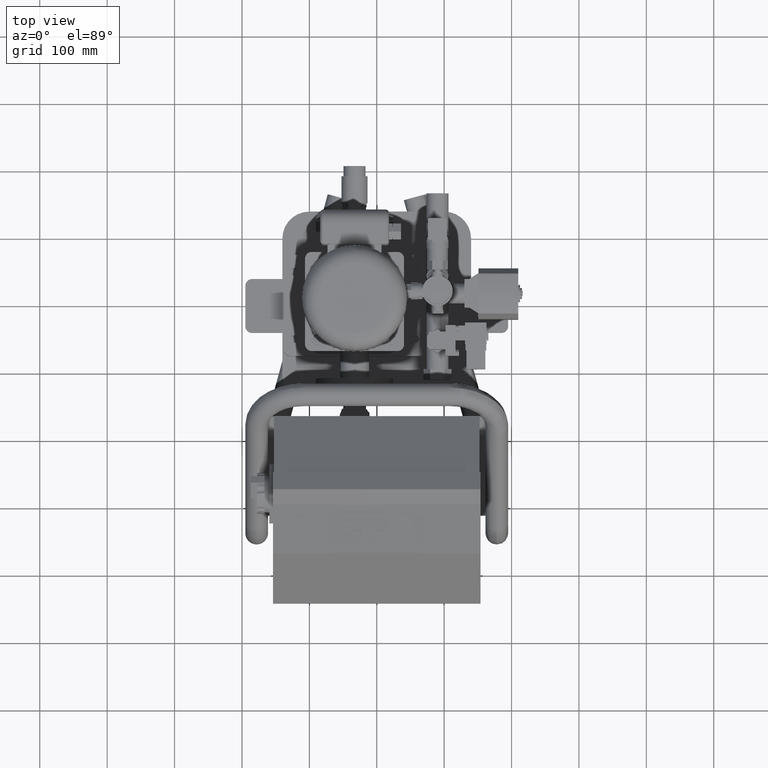
[diagram: clean part render]
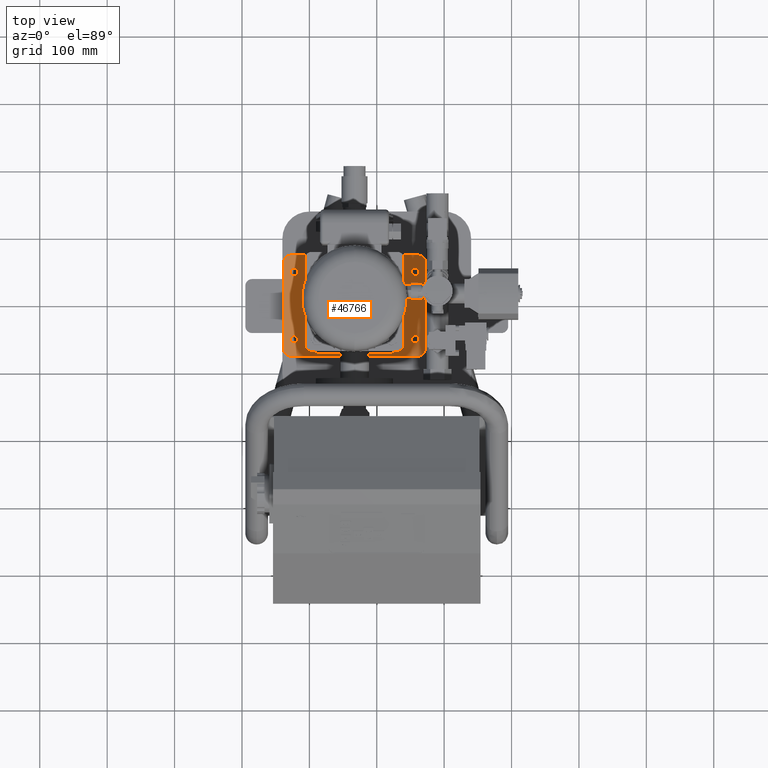
[diagram: same view with one face highlighted and labeled with its STEP entity id]
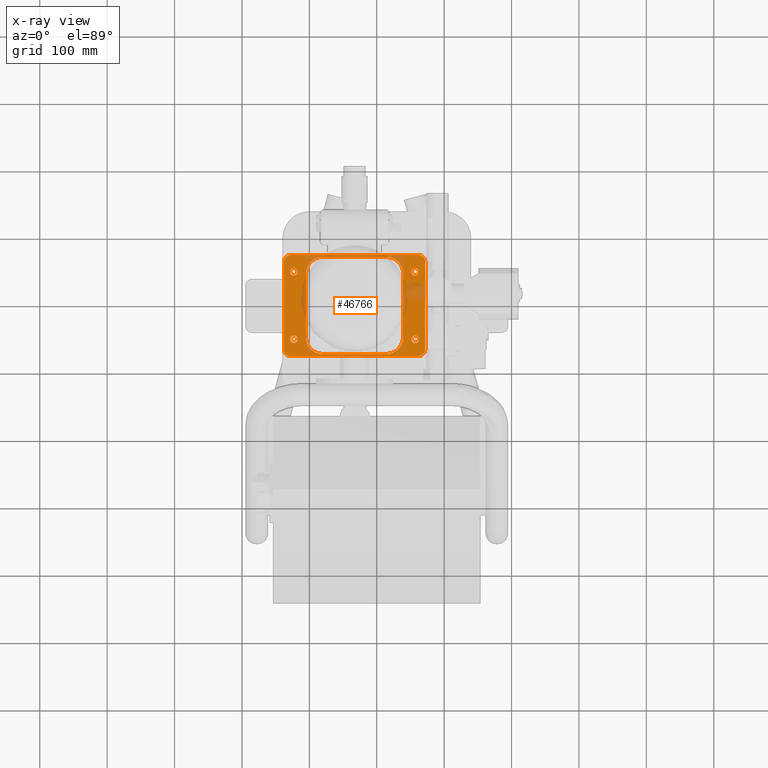
[diagram: x-ray of the same camera — body ghosted, the highlighted face saturated]
A machine part, top view. The second image highlights one B-rep face of the part: STEP entity #46766.
The next image is the same camera in x-ray: the body ghosted, the highlighted face saturated — about 20% of this face is hidden behind the body in this view.
In plain terms, the highlighted planar face has unit normal (0, 0, 1).
Its self-contained STEP definition (entity closure, byte-faithful):
#44602=CARTESIAN_POINT('',(-122.999999999999990,55.500000000000014,78.0));
#44603=VERTEX_POINT('',#44602);
#44619=CARTESIAN_POINT('',(-122.999999999999990,44.500000000000014,78.0));
#44620=VERTEX_POINT('',#44619);
#44627=CARTESIAN_POINT('',(-122.999999999999990,50.000000000000014,78.0));
#44628=DIRECTION('',(0.0,0.0,-1.0));
#44629=DIRECTION('',(0.0,1.0,0.0));
#44630=AXIS2_PLACEMENT_3D('',#44627,#44628,#44629);
#44631=CIRCLE('',#44630,5.500000000000000);
#44632=EDGE_CURVE('',#44603,#44620,#44631,.T.);
#44644=CARTESIAN_POINT('',(57.000000000000014,55.499999999999993,78.0));
#44645=VERTEX_POINT('',#44644);
#44661=CARTESIAN_POINT('',(57.000000000000014,44.500000000000000,78.0));
#44662=VERTEX_POINT('',#44661);
#44669=CARTESIAN_POINT('',(57.000000000000014,49.999999999999993,78.0));
#44670=DIRECTION('',(0.0,0.0,-1.0));
#44671=DIRECTION('',(0.0,1.0,0.0));
#44672=AXIS2_PLACEMENT_3D('',#44669,#44670,#44671);
#44673=CIRCLE('',#44672,5.500000000000000);
#44674=EDGE_CURVE('',#44645,#44662,#44673,.T.);
#44686=CARTESIAN_POINT('',(57.0,-44.500000000000007,78.0));
#44687=VERTEX_POINT('',#44686);
#44703=CARTESIAN_POINT('',(57.0,-55.500000000000000,78.0));
#44704=VERTEX_POINT('',#44703);
#44711=CARTESIAN_POINT('',(57.0,-50.000000000000007,78.0));
#44712=DIRECTION('',(0.0,0.0,-1.0));
#44713=DIRECTION('',(0.0,1.0,0.0));
#44714=AXIS2_PLACEMENT_3D('',#44711,#44712,#44713);
#44715=CIRCLE('',#44714,5.500000000000000);
#44716=EDGE_CURVE('',#44687,#44704,#44715,.T.);
#44728=CARTESIAN_POINT('',(-123.0,-44.499999999999986,78.0));
#44729=VERTEX_POINT('',#44728);
#44745=CARTESIAN_POINT('',(-123.0,-55.499999999999986,78.0));
#44746=VERTEX_POINT('',#44745);
#44753=CARTESIAN_POINT('',(-123.0,-49.999999999999986,78.0));
#44754=DIRECTION('',(0.0,0.0,-1.0));
#44755=DIRECTION('',(0.0,1.0,0.0));
#44756=AXIS2_PLACEMENT_3D('',#44753,#44754,#44755);
#44757=CIRCLE('',#44756,5.500000000000000);
#44758=EDGE_CURVE('',#44729,#44746,#44757,.T.);
#46147=CARTESIAN_POINT('',(-105.000000000000010,-47.374238321107356,78.0));
#46148=VERTEX_POINT('',#46147);
#46155=CARTESIAN_POINT('',(-80.374238321107427,-71.999999999999986,78.0));
#46156=VERTEX_POINT('',#46155);
#46157=CARTESIAN_POINT('',(-79.620074369691338,-46.620074369691288,78.0));
#46158=DIRECTION('',(0.0,0.0,-1.000000000000000));
#46159=DIRECTION('',(-0.707106781186547,-0.707106781186548,0.0));
#46160=AXIS2_PLACEMENT_3D('',#46157,#46158,#46159);
#46161=ELLIPSE('',#46160,25.754247222545644,25.000000000000004);
#46162=EDGE_CURVE('',#46148,#46156,#46161,.F.);
#46179=CARTESIAN_POINT('',(14.374238321107377,-72.0,78.0));
#46180=VERTEX_POINT('',#46179);
#46181=CARTESIAN_POINT('',(14.374238321107377,-72.0,78.0));
#46182=DIRECTION('',(-1.0,0.0,0.0));
#46183=VECTOR('',#46182,94.748476642214797);
#46184=LINE('',#46181,#46183);
#46185=EDGE_CURVE('',#46180,#46156,#46184,.T.);
#46205=CARTESIAN_POINT('',(39.0,-47.374238321107399,78.0));
#46206=VERTEX_POINT('',#46205);
#46207=CARTESIAN_POINT('',(13.620074369691302,-46.620074369691309,78.0));
#46208=DIRECTION('',(0.0,0.0,-1.0));
#46209=DIRECTION('',(0.707106781186548,-0.707106781186547,0.0));
#46210=AXIS2_PLACEMENT_3D('',#46207,#46208,#46209);
#46211=ELLIPSE('',#46210,25.754247222545640,25.0);
#46212=EDGE_CURVE('',#46180,#46206,#46211,.F.);
#46229=CARTESIAN_POINT('',(39.000000000000028,47.374238321107399,78.0));
#46230=VERTEX_POINT('',#46229);
#46237=CARTESIAN_POINT('',(14.374238321107427,72.0,78.0));
#46238=VERTEX_POINT('',#46237);
#46239=CARTESIAN_POINT('',(13.620074369691338,46.620074369691324,78.0));
#46240=DIRECTION('',(0.0,0.0,-1.0));
#46241=DIRECTION('',(0.707106781186547,0.707106781186548,0.0));
#46242=AXIS2_PLACEMENT_3D('',#46239,#46240,#46241);
#46243=ELLIPSE('',#46242,25.754247222545640,25.0);
#46244=EDGE_CURVE('',#46230,#46238,#46243,.F.);
#46261=CARTESIAN_POINT('',(-80.374238321107384,72.000000000000014,78.0));
#46262=VERTEX_POINT('',#46261);
#46263=CARTESIAN_POINT('',(-80.374238321107384,72.000000000000014,78.0));
#46264=DIRECTION('',(1.0,0.0,0.0));
#46265=VECTOR('',#46264,94.748476642214811);
#46266=LINE('',#46263,#46265);
#46267=EDGE_CURVE('',#46262,#46238,#46266,.T.);
#46287=CARTESIAN_POINT('',(-105.0,47.374238321107434,78.0));
#46288=VERTEX_POINT('',#46287);
#46289=CARTESIAN_POINT('',(-79.620074369691309,46.620074369691338,78.0));
#46290=DIRECTION('',(0.0,0.0,-1.000000000000000));
#46291=DIRECTION('',(-0.707106781186548,0.707106781186547,0.0));
#46292=AXIS2_PLACEMENT_3D('',#46289,#46290,#46291);
#46293=ELLIPSE('',#46292,25.754247222545640,24.999999999999996);
#46294=EDGE_CURVE('',#46262,#46288,#46293,.F.);
#46311=CARTESIAN_POINT('',(39.000000000000028,47.374238321107399,78.0));
#46312=DIRECTION('',(0.0,-1.0,0.0));
#46313=VECTOR('',#46312,94.748476642214797);
#46314=LINE('',#46311,#46313);
#46315=EDGE_CURVE('',#46230,#46206,#46314,.T.);
#46332=CARTESIAN_POINT('',(-105.000000000000010,-47.374238321107356,78.0));
#46333=DIRECTION('',(0.0,1.0,0.0));
#46334=VECTOR('',#46333,94.748476642214797);
#46335=LINE('',#46332,#46334);
#46336=EDGE_CURVE('',#46148,#46288,#46335,.T.);
#46347=CARTESIAN_POINT('',(-123.0,-49.999999999999986,78.0));
#46348=DIRECTION('',(0.0,0.0,-1.0));
#46349=DIRECTION('',(0.0,1.0,0.0));
#46350=AXIS2_PLACEMENT_3D('',#46347,#46348,#46349);
#46351=CIRCLE('',#46350,5.500000000000000);
#46352=EDGE_CURVE('',#44746,#44729,#46351,.T.);
#46371=CARTESIAN_POINT('',(57.0,-50.000000000000007,78.0));
#46372=DIRECTION('',(0.0,0.0,-1.0));
#46373=DIRECTION('',(0.0,1.0,0.0));
#46374=AXIS2_PLACEMENT_3D('',#46371,#46372,#46373);
#46375=CIRCLE('',#46374,5.500000000000000);
#46376=EDGE_CURVE('',#44704,#44687,#46375,.T.);
#46395=CARTESIAN_POINT('',(57.000000000000014,49.999999999999993,78.0));
#46396=DIRECTION('',(0.0,0.0,-1.0));
#46397=DIRECTION('',(0.0,1.0,0.0));
#46398=AXIS2_PLACEMENT_3D('',#46395,#46396,#46397);
#46399=CIRCLE('',#46398,5.500000000000000);
#46400=EDGE_CURVE('',#44662,#44645,#46399,.T.);
#46419=CARTESIAN_POINT('',(-122.999999999999990,50.000000000000014,78.0));
#46420=DIRECTION('',(0.0,0.0,-1.0));
#46421=DIRECTION('',(0.0,1.0,0.0));
#46422=AXIS2_PLACEMENT_3D('',#46419,#46420,#46421);
#46423=CIRCLE('',#46422,5.500000000000000);
#46424=EDGE_CURVE('',#44620,#44603,#46423,.T.);
#46442=CARTESIAN_POINT('',(72.000000000000014,65.000000000000014,78.0));
#46443=VERTEX_POINT('',#46442);
#46444=CARTESIAN_POINT('',(72.0,-65.0,78.0));
#46445=VERTEX_POINT('',#46444);
#46446=CARTESIAN_POINT('',(72.000000000000014,65.000000000000014,78.0));
#46447=DIRECTION('',(0.0,-1.0,0.0));
#46448=VECTOR('',#46447,130.0);
#46449=LINE('',#46446,#46448);
#46450=EDGE_CURVE('',#46443,#46445,#46449,.T.);
#46482=CARTESIAN_POINT('',(62.0,-75.0,78.0));
#46483=VERTEX_POINT('',#46482);
#46484=CARTESIAN_POINT('',(62.0,-65.0,78.0));
#46485=DIRECTION('',(0.0,0.0,-1.0));
#46486=DIRECTION('',(0.0,-1.0,0.0));
#46487=AXIS2_PLACEMENT_3D('',#46484,#46485,#46486);
#46488=CIRCLE('',#46487,9.999999999999982);
#46489=EDGE_CURVE('',#46445,#46483,#46488,.T.);
#46515=CARTESIAN_POINT('',(-128.0,-74.999999999999986,78.0));
#46516=VERTEX_POINT('',#46515);
#46517=CARTESIAN_POINT('',(62.0,-75.0,78.0));
#46518=DIRECTION('',(-1.0,0.0,0.0));
#46519=VECTOR('',#46518,190.0);
#46520=LINE('',#46517,#46519);
#46521=EDGE_CURVE('',#46483,#46516,#46520,.T.);
#46546=CARTESIAN_POINT('',(-138.0,-64.999999999999986,78.0));
#46547=VERTEX_POINT('',#46546);
#46548=CARTESIAN_POINT('',(-128.0,-64.999999999999986,78.0));
#46549=DIRECTION('',(0.0,0.0,-1.0));
#46550=DIRECTION('',(-1.0,0.0,0.0));
#46551=AXIS2_PLACEMENT_3D('',#46548,#46549,#46550);
#46552=CIRCLE('',#46551,10.0);
#46553=EDGE_CURVE('',#46516,#46547,#46552,.T.);
#46579=CARTESIAN_POINT('',(-138.0,65.000000000000014,78.0));
#46580=VERTEX_POINT('',#46579);
#46581=CARTESIAN_POINT('',(-138.0,-64.999999999999986,78.0));
#46582=DIRECTION('',(0.0,1.0,0.0));
#46583=VECTOR('',#46582,130.0);
#46584=LINE('',#46581,#46583);
#46585=EDGE_CURVE('',#46547,#46580,#46584,.T.);
#46610=CARTESIAN_POINT('',(-127.999999999999990,75.000000000000014,78.0));
#46611=VERTEX_POINT('',#46610);
#46612=CARTESIAN_POINT('',(-127.999999999999990,65.000000000000014,78.0));
#46613=DIRECTION('',(0.0,0.0,-1.0));
#46614=DIRECTION('',(0.0,1.0,0.0));
#46615=AXIS2_PLACEMENT_3D('',#46612,#46613,#46614);
#46616=CIRCLE('',#46615,10.000000000000009);
#46617=EDGE_CURVE('',#46580,#46611,#46616,.T.);
#46643=CARTESIAN_POINT('',(62.000000000000043,75.000000000000014,78.0));
#46644=VERTEX_POINT('',#46643);
#46645=CARTESIAN_POINT('',(-127.999999999999990,75.000000000000014,78.0));
#46646=DIRECTION('',(1.0,0.0,0.0));
#46647=VECTOR('',#46646,190.000000000000030);
#46648=LINE('',#46645,#46647);
#46649=EDGE_CURVE('',#46611,#46644,#46648,.T.);
#46674=CARTESIAN_POINT('',(62.000000000000043,65.000000000000014,78.0));
#46675=DIRECTION('',(0.0,0.0,-1.0));
#46676=DIRECTION('',(1.0,0.0,0.0));
#46677=AXIS2_PLACEMENT_3D('',#46674,#46675,#46676);
#46678=CIRCLE('',#46677,9.999999999999982);
#46679=EDGE_CURVE('',#46644,#46443,#46678,.T.);
#46725=CARTESIAN_POINT('',(-33.0,1.256420E-014,78.0));
#46726=DIRECTION('',(0.0,0.0,1.0));
#46727=DIRECTION('',(0.0,-1.0,0.0));
#46728=AXIS2_PLACEMENT_3D('',#46725,#46726,#46727);
#46729=PLANE('',#46728);
#46730=ORIENTED_EDGE('',*,*,#46450,.F.);
#46731=ORIENTED_EDGE('',*,*,#46679,.F.);
#46732=ORIENTED_EDGE('',*,*,#46649,.F.);
#46733=ORIENTED_EDGE('',*,*,#46617,.F.);
#46734=ORIENTED_EDGE('',*,*,#46585,.F.);
#46735=ORIENTED_EDGE('',*,*,#46553,.F.);
#46736=ORIENTED_EDGE('',*,*,#46521,.F.);
#46737=ORIENTED_EDGE('',*,*,#46489,.F.);
#46738=EDGE_LOOP('',(#46730,#46731,#46732,#46733,#46734,#46735,#46736,#46737));
#46739=FACE_OUTER_BOUND('',#46738,.T.);
#46740=ORIENTED_EDGE('',*,*,#46315,.T.);
#46741=ORIENTED_EDGE('',*,*,#46212,.F.);
#46742=ORIENTED_EDGE('',*,*,#46185,.T.);
#46743=ORIENTED_EDGE('',*,*,#46162,.F.);
#46744=ORIENTED_EDGE('',*,*,#46336,.T.);
#46745=ORIENTED_EDGE('',*,*,#46294,.F.);
#46746=ORIENTED_EDGE('',*,*,#46267,.T.);
#46747=ORIENTED_EDGE('',*,*,#46244,.F.);
#46748=EDGE_LOOP('',(#46740,#46741,#46742,#46743,#46744,#46745,#46746,#46747));
#46749=FACE_BOUND('',#46748,.T.);
#46750=ORIENTED_EDGE('',*,*,#46352,.T.);
#46751=ORIENTED_EDGE('',*,*,#44758,.T.);
#46752=EDGE_LOOP('',(#46750,#46751));
#46753=FACE_BOUND('',#46752,.T.);
#46754=ORIENTED_EDGE('',*,*,#46376,.T.);
#46755=ORIENTED_EDGE('',*,*,#44716,.T.);
#46756=EDGE_LOOP('',(#46754,#46755));
#46757=FACE_BOUND('',#46756,.T.);
#46758=ORIENTED_EDGE('',*,*,#46400,.T.);
#46759=ORIENTED_EDGE('',*,*,#44674,.T.);
#46760=EDGE_LOOP('',(#46758,#46759));
#46761=FACE_BOUND('',#46760,.T.);
#46762=ORIENTED_EDGE('',*,*,#46424,.T.);
#46763=ORIENTED_EDGE('',*,*,#44632,.T.);
#46764=EDGE_LOOP('',(#46762,#46763));
#46765=FACE_BOUND('',#46764,.T.);
#46766=ADVANCED_FACE('',(#46739,#46749,#46753,#46757,#46761,#46765),#46729,.T.);